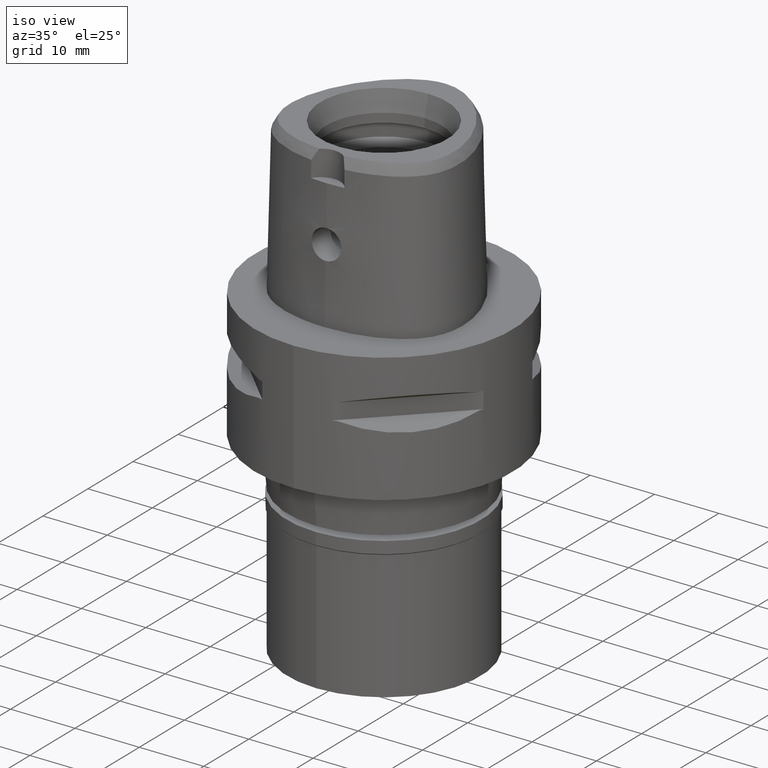
[diagram: clean part render]
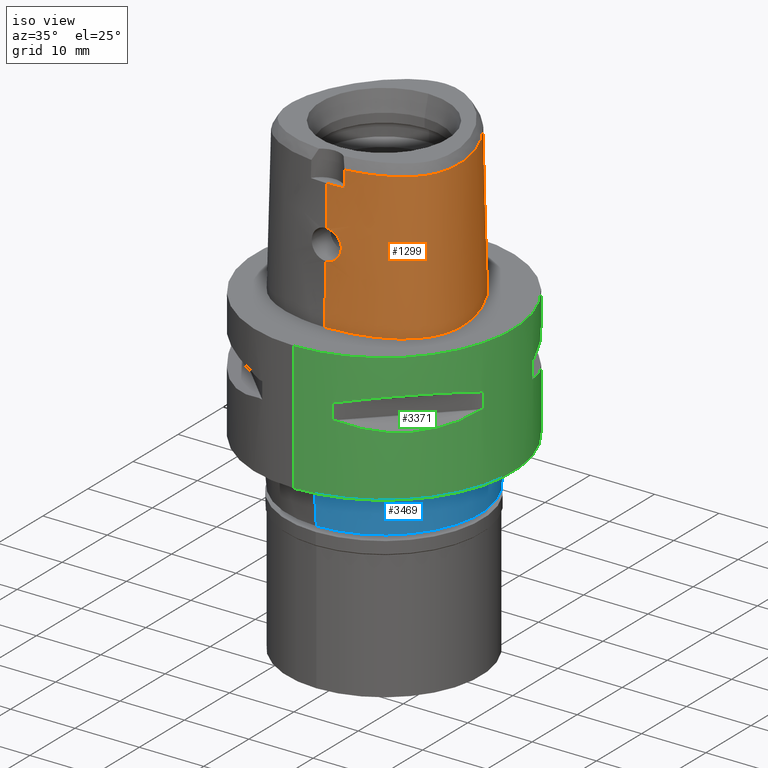
[diagram: same view with three faces highlighted in distinct colors, each labeled with its STEP entity id]
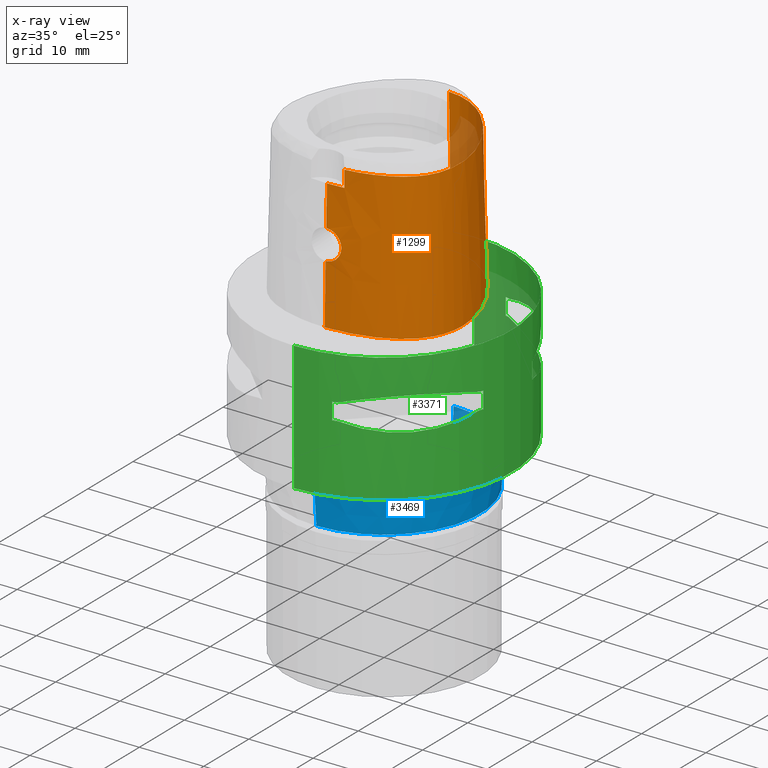
[diagram: x-ray of the same camera — body ghosted, the three highlighted faces saturated]
A machine part, iso view with three faces highlighted in distinct colors.
The next image is the same camera in x-ray (body ghosted, the three faces saturated) — at least one of them is partly hidden behind the body in this view.
Their STEP definitions:

[orange] entity #1299 — the highlighted face is a freeform B-spline surface patch.
#70 = CARTESIAN_POINT ( 'NONE',  ( 12.47264427687999877, -7.201084530003999618, 22.97118249122000222 ) ) ;
#88 = CARTESIAN_POINT ( 'NONE',  ( 9.263792099397001323, -10.80433667490000005, 7.356783935097999994 ) ) ;
#110 = CARTESIAN_POINT ( 'NONE',  ( 4.045377554437999734, -12.93507169190999839, -0.4504153429651999718 ) ) ;
#138 = CARTESIAN_POINT ( 'NONE',  ( 14.06716929220000090, -4.370330523015999447, -0.4504153429651999718 ) ) ;
#159 = CARTESIAN_POINT ( 'NONE',  ( 11.56079931822999995, -8.766973838382998707, 15.16398321315999986 ) ) ;
#216 = CARTESIAN_POINT ( 'NONE',  ( 8.879307742571000972, 9.717869209200998171, 15.16398321315999986 ) ) ;
#219 = CARTESIAN_POINT ( 'NONE',  ( 3.539803247036207967, 13.67924950644733606, 22.52071729251861143 ) ) ;
#226 = CARTESIAN_POINT ( 'NONE',  ( 2.293385494867744345, -12.76236463091154505, 11.32198205547385506 ) ) ;
#236 = CARTESIAN_POINT ( 'NONE',  ( 1.661261531538999982E-10, 14.96299999994999830, 3.899103262484000620E-13 ) ) ;
#248 = CARTESIAN_POINT ( 'NONE',  ( 1.142660624072548758, -12.79660889248676092, 13.49746603115485577 ) ) ;
#275 = CARTESIAN_POINT ( 'NONE',  ( 2.273024517919945975, -12.76906917249595885, 11.14078746314901025 ) ) ;
#304 = CARTESIAN_POINT ( 'NONE',  ( 1.951316193587584902, -12.82105448168982598, 10.28025765310058404 ) ) ;
#316 = CARTESIAN_POINT ( 'NONE',  ( 2.568703243657000090, -12.45023755174000080, 22.52071758139999957 ) ) ;
#323 = CARTESIAN_POINT ( 'NONE',  ( 2.174655026127970459, -12.75097664368962391, 12.25065586503894188 ) ) ;
#340 = CARTESIAN_POINT ( 'NONE',  ( 0.2807011223801637034, -12.81802318095999915, 13.79999999999999893 ) ) ;
#351 = EDGE_CURVE ( 'NONE', #4447, #1700, #2070, .T. ) ;
#383 = CARTESIAN_POINT ( 'NONE',  ( 4.736458210706018690, -12.13940339171434424, 22.52071729251861143 ) ) ;
#426 = CARTESIAN_POINT ( 'NONE',  ( 13.17288114413000066, -6.685476016541000099, 7.356783935097999994 ) ) ;
#452 = CARTESIAN_POINT ( 'NONE',  ( 11.41870150597999967, -8.632189043231001335, 22.97118249122000222 ) ) ;
#466 = CARTESIAN_POINT ( 'NONE',  ( -1.930288390703999815E-12, -13.16299999999999848, 3.892626961507000177E-13 ) ) ;
#469 = ORIENTED_EDGE ( 'NONE', *, *, #2871, .F. ) ;
#470 = CARTESIAN_POINT ( 'NONE',  ( -0.8491476845015000219, -12.57247808768999953, 22.97118249122000222 ) ) ;
#494 = CARTESIAN_POINT ( 'NONE',  ( 12.37623263715999933, -8.065311703606999671, 7.356783935097999994 ) ) ;
#520 = CARTESIAN_POINT ( 'NONE',  ( 13.59718074450999836, -2.623279432783999887, 22.97118249122000222 ) ) ;
#541 = CARTESIAN_POINT ( 'NONE',  ( 11.17307779205999907, 6.450792858636000382, 15.16398321315999986 ) ) ;
#563 = CARTESIAN_POINT ( 'NONE',  ( 1.634303316525999916, 14.85806844434000062, -0.4504153429651999718 ) ) ;
#575 = CARTESIAN_POINT ( 'NONE',  ( 1.542743282436311425, -12.86521460690171281, 9.794004530773854356 ) ) ;
#593 = CARTESIAN_POINT ( 'NONE',  ( 3.618945440640000122, 13.84737964006000155, 15.16398321315999986 ) ) ;
#605 = CARTESIAN_POINT ( 'NONE',  ( 1.684262171806061970, -12.77302273728515303, 13.06656659278257138 ) ) ;
#624 = CARTESIAN_POINT ( 'NONE',  ( 0.5039711947966821759, 14.40001989753188916, 22.52071729251861143 ) ) ;
#627 = B_SPLINE_CURVE_WITH_KNOTS ( 'NONE', 3,
 ( #466, #2996, #3382, #4505, #1227, #2675, #862, #3786, #1141, #4071, #1610, #798, #3065, #3696, #2246, #1303, #2702, #2343, #3862, #3090, #4523, #236 ),
 .UNSPECIFIED., .F., .F.,
 ( 4, 1, 1, 1, 1, 1, 1, 1, 1, 1, 1, 1, 1, 1, 1, 1, 1, 1, 1, 4 ),
 ( 0.0000000000000000000, 0.08333333333318000691, 0.1666666666663000063, 0.2083333333328000192, 0.2499999999994000077, 0.2916666666661000273, 0.3124999999992999489, 0.3333333333326000125, 0.3541666666659000207, 0.3749999999991999733, 0.4166666666658000451, 0.4583333333323000303, 0.4999999999988999910, 0.5833333333319999925, 0.6666666666652000250, 0.7499999999983000265, 0.8333333333314000280, 0.9166666666646000605, 0.9583333333311000457, 1.000000000000000000 ),
 .UNSPECIFIED. ) ;
#632 = CARTESIAN_POINT ( 'NONE',  ( 0.8463630567564333074, -12.91308736094397958, 9.361346884265582702 ) ) ;
#650 = CARTESIAN_POINT ( 'NONE',  ( 12.48241502960296501, -7.206725676733834796, 22.52071729251861143 ) ) ;
#656 = CARTESIAN_POINT ( 'NONE',  ( 2.300118713600481701, -12.75356737073905045, 11.64310838016456451 ) ) ;
#683 = CARTESIAN_POINT ( 'NONE',  ( 0.9870234129898286524, -12.90617499169804283, 9.419215489519121576 ) ) ;
#794 = ORIENTED_EDGE ( 'NONE', *, *, #3094, .T. ) ;
#798 = CARTESIAN_POINT ( 'NONE',  ( 14.05597389355748739, -4.368733593420984995, 9.282077474801093964E-08 ) ) ;
#802 = CARTESIAN_POINT ( 'NONE',  ( -0.5664558417530000112, -12.58333764852999792, 22.97118249122000222 ) ) ;
#828 = CARTESIAN_POINT ( 'NONE',  ( 13.62540800579000155, -0.2530731131868000361, 15.16398321315999986 ) ) ;
#846 = CARTESIAN_POINT ( 'NONE',  ( 13.35152085058000004, -6.764911736232000372, -0.4504153429651999718 ) ) ;
#862 = CARTESIAN_POINT ( 'NONE',  ( 11.83679699033385013, -9.028767381210370147, 9.282077474801093964E-08 ) ) ;
#868 = CARTESIAN_POINT ( 'NONE',  ( 12.99424143767999951, -6.606040296849999827, 15.16398321315999986 ) ) ;
#899 = CARTESIAN_POINT ( 'NONE',  ( 12.85560858368000048, 2.830737031714000373, 15.16398321315999986 ) ) ;
#921 = CARTESIAN_POINT ( 'NONE',  ( 3.786921847045999989, 14.20422968890999904, -0.4504153429651999718 ) ) ;
#944 = CARTESIAN_POINT ( 'NONE',  ( 1.594059747537999838, 14.66589040905999930, 7.356783935097999994 ) ) ;
#955 = CARTESIAN_POINT ( 'NONE',  ( 2.129813370590927679, -12.75234797374024254, 12.36828487053687731 ) ) ;
#988 = CARTESIAN_POINT ( 'NONE',  ( 1.823556130522964391, -12.83669982089731398, 10.09632717221551879 ) ) ;
#1003 = CARTESIAN_POINT ( 'NONE',  ( 13.19588016803159292, -5.576003003766894395, 22.52071729251861143 ) ) ;
#1005 = VERTEX_POINT ( 'NONE', #3464 ) ;
#1007 = ORIENTED_EDGE ( 'NONE', *, *, #351, .T. ) ;
#1009 = CARTESIAN_POINT ( 'NONE',  ( 1.107777221481558216, -12.89898952628356632, 9.478752576675015362 ) ) ;
#1031 = CARTESIAN_POINT ( 'NONE',  ( 1.362992585940625334, -12.88053689247976052, 9.645493491656431218 ) ) ;
#1060 = CARTESIAN_POINT ( 'NONE',  ( 1.493711519974081137, -12.86960986600499623, 9.750504243735710119 ) ) ;
#1082 = B_SPLINE_CURVE_WITH_KNOTS ( 'NONE', 3,
 ( #2373, #624, #2021, #219, #1676, #3182, #3131, #2397, #2821, #3870, #4642, #1003, #2453, #650, #2095, #2186, #3664, #1858, #3225, #383, #2891, #316 ),
 .UNSPECIFIED., .F., .F.,
 ( 4, 1, 1, 1, 1, 1, 1, 1, 1, 1, 1, 1, 1, 1, 1, 1, 1, 1, 1, 4 ),
 ( 0.0000000000000000000, 0.04407253041122694004, 0.08814506081991534125, 0.1762901216375037383, 0.2644351824549863728, 0.3525802432724689517, 0.4407253040900573349, 0.5288703649075399138, 0.5729428953163340221, 0.6170154257250224372, 0.6610879561338167676, 0.6831242213382138218, 0.7051604865426108759, 0.7271967517470081521, 0.7492330169512992910, 0.7933055473601992036, 0.8373780777689934229, 0.8814506081776818380, 0.9695956689951855667, 1.000000000000000000 ),
 .UNSPECIFIED. ) ;
#1141 = CARTESIAN_POINT ( 'NONE',  ( 12.97089751291263227, -7.488751170712958150, 9.282077474801093964E-08 ) ) ;
#1163 = CARTESIAN_POINT ( 'NONE',  ( 7.098705612412000043, -11.85792496016999920, 7.356783935097999994 ) ) ;
#1185 = CARTESIAN_POINT ( 'NONE',  ( 13.74837364329999900, -5.739794814221999886, -0.4504153429651999718 ) ) ;
#1205 = CARTESIAN_POINT ( 'NONE',  ( -1.260417588442999891E-08, -12.66301535847000004, 19.99999996345999875 ) ) ;
#1211 = CARTESIAN_POINT ( 'NONE',  ( 7.165542351163000312, -12.04243711977999887, -0.4504153429651999718 ) ) ;
#1227 = CARTESIAN_POINT ( 'NONE',  ( 9.354901132058586199, -10.96475156047701205, 9.282077474801093964E-08 ) ) ;
#1231 = CARTESIAN_POINT ( 'NONE',  ( -0.5813887771194999887, -13.16870179345000125, -0.4504153429651999718 ) ) ;
#1256 = CARTESIAN_POINT ( 'NONE',  ( 13.22478982947999882, 2.964135533712000115, -0.4504153429651999718 ) ) ;
#1266 = CARTESIAN_POINT ( 'NONE',  ( 0.2902039409409589710, -12.93122636338095610, 9.213445385782282671 ) ) ;
#1299 = ADVANCED_FACE ( 'NONE', ( #2140 ), #3826, .T. ) ;
#1303 = CARTESIAN_POINT ( 'NONE',  ( 11.50301489970195590, 6.641268748833571323, 9.282077474801093964E-08 ) ) ;
#1306 = CARTESIAN_POINT ( 'NONE',  ( 1.745775296001229160, -12.61172358491318235, 20.00000039696028509 ) ) ;
#1311 = CARTESIAN_POINT ( 'NONE',  ( 11.00320918113999902, 6.352726063081999719, 22.97118249122000222 ) ) ;
#1320 = CARTESIAN_POINT ( 'NONE',  ( 1.749832844621748817, -12.76985976215405572, 12.99331170241439715 ) ) ;
#1347 = CARTESIAN_POINT ( 'NONE',  ( 2.299969345384927699, -12.75813322093607027, 11.46185367828803159 ) ) ;
#1364 = CARTESIAN_POINT ( 'NONE',  ( 9.179411193043000239, 9.970937548241000314, -0.4504153429651999718 ) ) ;
#1376 = CARTESIAN_POINT ( 'NONE',  ( 2.133463040823847745, -12.75222410475732993, 12.35927822234116569 ) ) ;
#1389 = CARTESIAN_POINT ( 'NONE',  ( 3.534957237436999744, 13.66895461564000058, 22.97118249122000222 ) ) ;
#1398 = CARTESIAN_POINT ( 'NONE',  ( 1.209086969383210919, -12.79412523546007563, 13.45817784083520507 ) ) ;
#1417 = CARTESIAN_POINT ( 'NONE',  ( 1.777128131591719784, -12.76853727841389663, 12.96066480105116270 ) ) ;
#1445 = CARTESIAN_POINT ( 'NONE',  ( 0.5839158949211610272, -12.81370532052833333, 13.74793500496120302 ) ) ;
#1472 = CARTESIAN_POINT ( 'NONE',  ( -2.522154460911999787E-13, -12.93301545397000041, 9.199999999999999289 ) ) ;
#1528 = CARTESIAN_POINT ( 'NONE',  ( 11.51281501389000006, 6.646926449742999843, -0.4504153429651999718 ) ) ;
#1532 = B_SPLINE_CURVE_WITH_KNOTS ( 'NONE', 3,
 ( #3079, #4539, #1266, #2408, #2102, #3601, #4617, #4311, #632, #4264, #2771, #1681, #683, #1009, #2030, #1031, #2849, #1060, #575, #3578, #1704, #3902, #2872, #2460, #2802, #988, #4287, #304, #3923, #2506, #2438, #2080, #3500, #3159, #2128, #275, #2828, #226, #3136, #2482, #1347, #656, #4649, #3877, #1760, #3948, #323, #1778, #4592, #1376, #955, #3231, #4686, #3213, #3550, #4336, #1417, #1320, #1733, #605, #4233, #2054, #4669, #3526, #3191, #1398, #248, #2144, #4713, #3621, #2899, #3966, #4360, #1445, #340, #3257 ),
 .UNSPECIFIED., .F., .F.,
 ( 4, 2, 2, 1, 1, 1, 2, 2, 2, 2, 2, 1, 2, 2, 2, 2, 2, 2, 2, 2, 2, 2, 2, 2, 2, 1, 1, 1, 2, 2, 2, 2, 2, 1, 2, 2, 2, 2, 1, 1, 2, 2, 4 ),
 ( 0.0000000000000000000, 0.06250000000000432987, 0.09375000000000656419, 0.1093750000000075773, 0.1171875000000080491, 0.1210937500000083128, 0.1230468750000084516, 0.1250000000000085765, 0.1875000000000157652, 0.2187500000000195122, 0.2343750000000213995, 0.2421875000000222045, 0.2460937500000223710, 0.2500000000000225930, 0.2812500000000218159, 0.3125000000000210387, 0.3437500000000203171, 0.3593750000000199285, 0.3750000000000195954, 0.4375000000000193179, 0.4687500000000188183, 0.4843750000000182077, 0.5000000000000176525, 0.5625000000000129896, 0.5937500000000109912, 0.6093750000000099920, 0.6171875000000098810, 0.6210937500000095479, 0.6230468750000096589, 0.6250000000000097700, 0.6875000000000087708, 0.7187500000000082157, 0.7343750000000079936, 0.7421875000000082157, 0.7460937500000084377, 0.7500000000000085487, 0.8125000000000063283, 0.8437500000000052180, 0.8593750000000047740, 0.8671875000000045519, 0.8710937500000044409, 0.8750000000000042188, 1.000000000000000000 ),
 .UNSPECIFIED. ) ;
#1548 = CARTESIAN_POINT ( 'NONE',  ( 10.69740338561999948, -9.843145463419999075, 7.356783935097999994 ) ) ;
#1569 = CARTESIAN_POINT ( 'NONE',  ( 3.976337268537999847, -12.54865303907000040, 15.16398321315999986 ) ) ;
#1595 = CARTESIAN_POINT ( 'NONE',  ( 13.48500868276999931, -4.287290201189000172, 22.97118249122000222 ) ) ;
#1610 = CARTESIAN_POINT ( 'NONE',  ( 13.73754041215770805, -5.736583202463232389, 9.282077474801093964E-08 ) ) ;
#1614 = CARTESIAN_POINT ( 'NONE',  ( 12.21811943099000075, -7.950323039575999395, 15.16398321315999986 ) ) ;
#1639 = CARTESIAN_POINT ( 'NONE',  ( 6.258002222271001003, 12.52314191327999993, 7.356783935097999994 ) ) ;
#1647 = ORIENTED_EDGE ( 'NONE', *, *, #3608, .F. ) ;
#1649 = CARTESIAN_POINT ( 'NONE',  ( -1.930288390703999815E-12, -13.16299999999999848, 3.892626961507000177E-13 ) ) ;
#1673 = CARTESIAN_POINT ( 'NONE',  ( 9.029359467806999717, 9.844403378720999243, 7.356783935097999994 ) ) ;
#1676 = CARTESIAN_POINT ( 'NONE',  ( 6.021703607728960961, 12.22251596526603379, 22.52071729251861143 ) ) ;
#1681 = CARTESIAN_POINT ( 'NONE',  ( 0.8747345760825240291, -12.91171422237656863, 9.372829819806552720 ) ) ;
#1700 = VERTEX_POINT ( 'NONE', #3905 ) ;
#1704 = CARTESIAN_POINT ( 'NONE',  ( 1.591641127645532450, -12.86067053571080265, 9.839636682121147615 ) ) ;
#1733 = CARTESIAN_POINT ( 'NONE',  ( 1.706514786404052408, -12.77195056588757360, 13.04216762706118793 ) ) ;
#1750 = CARTESIAN_POINT ( 'NONE',  ( 8.729256017336000539, 9.591335039680000563, 22.97118249122000222 ) ) ;
#1760 = CARTESIAN_POINT ( 'NONE',  ( 2.225429295877805469, -12.75012210877848062, 12.08593180704468928 ) ) ;
#1778 = CARTESIAN_POINT ( 'NONE',  ( 2.151238930190031873, -12.75164808129624561, 12.31414270909390574 ) ) ;
#1782 = VERTEX_POINT ( 'NONE', #2901 ) ;
#1858 = CARTESIAN_POINT ( 'NONE',  ( 9.075996545096090884, -10.47368666716481123, 22.52071729251861143 ) ) ;
#1882 = CARTESIAN_POINT ( 'NONE',  ( 9.070417823553999170, -10.46386426041000028, 22.97118249122000222 ) ) ;
#1904 = CARTESIAN_POINT ( 'NONE',  ( 12.53434584332000057, -8.180300367637000747, -0.4504153429651999718 ) ) ;
#1923 = CARTESIAN_POINT ( 'NONE',  ( 12.06000622482999951, -7.835334375546000096, 22.97118249122000222 ) ) ;
#1925 = CARTESIAN_POINT ( 'NONE',  ( 2.580559080356283008, -12.46988838676011468, 21.68047841357000038 ) ) ;
#1946 = CARTESIAN_POINT ( 'NONE',  ( 10.81840190636999921, -9.997360705044998852, -0.4504153429651999718 ) ) ;
#1971 = CARTESIAN_POINT ( 'NONE',  ( 6.965032134911000483, -11.48890064096000074, 22.97118249122000222 ) ) ;
#1992 = CARTESIAN_POINT ( 'NONE',  ( 6.136343129648000883, 12.36836368859999880, 15.16398321315999986 ) ) ;
#2018 = CARTESIAN_POINT ( 'NONE',  ( 0.3611446949459999889, 14.40383093538000026, 22.97118249122000222 ) ) ;
#2021 = CARTESIAN_POINT ( 'NONE',  ( 1.515894610913128826, 14.29262276005753485, 22.52071729251861143 ) ) ;
#2030 = CARTESIAN_POINT ( 'NONE',  ( 1.298081316895645099, -12.88549019284528541, 9.599832172041297795 ) ) ;
#2054 = CARTESIAN_POINT ( 'NONE',  ( 1.645449367504334903, -12.77488553661844151, 13.10705414946518488 ) ) ;
#2070 = B_SPLINE_CURVE_WITH_KNOTS ( 'NONE', 3,
 ( #3590, #1306, #4551, #4195 ),
 .UNSPECIFIED., .F., .F.,
 ( 4, 4 ),
 ( 0.0000000000000000000, 1.000000000000000000 ),
 .UNSPECIFIED. ) ;
#2080 = CARTESIAN_POINT ( 'NONE',  ( 2.093435941504518727, -12.80154818977981357, 10.54659307499018972 ) ) ;
#2092 = CARTESIAN_POINT ( 'NONE',  ( -0.4356961645870999766, 14.57076311456999917, 15.16398321315999986 ) ) ;
#2095 = CARTESIAN_POINT ( 'NONE',  ( 12.06912915025992206, -7.841969071234663247, 22.52071729251861143 ) ) ;
#2102 = CARTESIAN_POINT ( 'NONE',  ( 0.5851900645696469505, -12.92362272837751114, 9.274365687045227347 ) ) ;
#2128 = CARTESIAN_POINT ( 'NONE',  ( 2.230462555877943842, -12.77898657628069756, 10.91885181785458059 ) ) ;
#2140 = FACE_OUTER_BOUND ( 'NONE', #2535, .T. ) ;
#2144 = CARTESIAN_POINT ( 'NONE',  ( 1.043973006521108138, -12.80001853782782462, 13.54975762555262087 ) ) ;
#2156 = EDGE_CURVE ( 'NONE', #4181, #3497, #4310, .T. ) ;
#2186 = CARTESIAN_POINT ( 'NONE',  ( 11.42690036410446197, -8.639965949822933311, 22.52071729251861143 ) ) ;
#2240 = CARTESIAN_POINT ( 'NONE',  ( 2.603594716343999860, -12.50959097760000027, 20.00000007790999845 ) ) ;
#2246 = CARTESIAN_POINT ( 'NONE',  ( 13.21414036827191474, 2.960287499207522988, 9.282077474801093964E-08 ) ) ;
#2251 = CARTESIAN_POINT ( 'NONE',  ( 1.057767382078000029, -13.20004108082999927, -0.4504153429651999718 ) ) ;
#2273 = CARTESIAN_POINT ( 'NONE',  ( 13.18504574001000051, -5.572791037182000196, 22.97118249122000222 ) ) ;
#2293 = CARTESIAN_POINT ( 'NONE',  ( 13.56059767553000128, -5.684126888541999989, 7.356783935097999994 ) ) ;
#2310 = CARTESIAN_POINT ( 'NONE',  ( -4.211779061779190698E-09, -12.71469678372942980, 17.93333361273020543 ) ) ;
#2317 = CARTESIAN_POINT ( 'NONE',  ( 12.81560173122000101, -6.526604577159000442, 22.97118249122000222 ) ) ;
#2319 = ORIENTED_EDGE ( 'NONE', *, *, #3269, .T. ) ;
#2343 = CARTESIAN_POINT ( 'NONE',  ( 6.372642519642405468, 12.66899062315751401, 9.282077474801093964E-08 ) ) ;
#2370 = CARTESIAN_POINT ( 'NONE',  ( -0.4238406400436000032, 14.37596217944000010, 22.97118249122000222 ) ) ;
#2373 = CARTESIAN_POINT ( 'NONE',  ( -6.273120490105999997E-11, 14.40001989798000182, 22.52071729252999788 ) ) ;
#2397 = CARTESIAN_POINT ( 'NONE',  ( 12.68166859856463091, 2.767886240359027639, 22.52071729251861143 ) ) ;
#2408 = CARTESIAN_POINT ( 'NONE',  ( 0.5113403790312807118, -12.92585909161381608, 9.256304699929900792 ) ) ;
#2427 = CARTESIAN_POINT ( 'NONE',  ( -0.2906054647037999428, 14.57957065327999935, 15.16398321315999986 ) ) ;
#2438 = CARTESIAN_POINT ( 'NONE',  ( 2.060625410429665294, -12.80630362429435998, 10.47760979869173958 ) ) ;
#2450 = CARTESIAN_POINT ( 'NONE',  ( 0.3713127192391000309, 14.59941792462999999, 15.16398321315999986 ) ) ;
#2453 = CARTESIAN_POINT ( 'NONE',  ( 12.82590900890055430, -6.531187914407115436, 22.52071729251861143 ) ) ;
#2460 = CARTESIAN_POINT ( 'NONE',  ( 1.677338744211443800, -12.85235830105390242, 9.924503536723278785 ) ) ;
#2482 = CARTESIAN_POINT ( 'NONE',  ( 2.299158587325218939, -12.75906338818680652, 11.42842241198873054 ) ) ;
#2506 = CARTESIAN_POINT ( 'NONE',  ( 2.043463385705227342, -12.80871364514175603, 10.44374245704669946 ) ) ;
#2535 = EDGE_LOOP ( 'NONE', ( #4015, #794, #469, #1007, #3304, #1647, #4563, #2319 ) ) ;
#2610 = CARTESIAN_POINT ( 'NONE',  ( 11.70289713048000024, -8.901758633534999632, 7.356783935097999994 ) ) ;
#2633 = CARTESIAN_POINT ( 'NONE',  ( 13.87311575572000066, -4.342650415739999659, 7.356783935097999994 ) ) ;
#2655 = CARTESIAN_POINT ( 'NONE',  ( 3.941817125587999460, -12.35544371266000141, 22.97118249122000222 ) ) ;
#2675 = CARTESIAN_POINT ( 'NONE',  ( 10.81142122104199643, -9.988463670040838238, 9.282077474801093964E-08 ) ) ;
#2679 = CARTESIAN_POINT ( 'NONE',  ( 1.039641956624000052, -12.80928534899000049, 15.16398321315999986 ) ) ;
#2702 = CARTESIAN_POINT ( 'NONE',  ( 9.170754360956941298, 9.963637498495081957, 9.282077474801093964E-08 ) ) ;
#2708 = CARTESIAN_POINT ( 'NONE',  ( 11.84499494273000053, -9.036543428687000556, -0.4504153429651999718 ) ) ;
#2736 = CARTESIAN_POINT ( 'NONE',  ( 6.014684037025000762, 12.21358546391000210, 22.97118249122000222 ) ) ;
#2771 = CARTESIAN_POINT ( 'NONE',  ( 0.8690674297353273570, -12.91199189238994371, 9.370505741518016407 ) ) ;
#2789 = CARTESIAN_POINT ( 'NONE',  ( 0.3814807435322000173, 14.79500491388999883, 7.356783935097999994 ) ) ;
#2801 = CARTESIAN_POINT ( 'NONE',  ( -2.522154460911999787E-13, -12.93301545397000041, 9.199999999999999289 ) ) ;
#2802 = CARTESIAN_POINT ( 'NONE',  ( 1.727977423403443735, -12.84715031218481052, 9.980214359576860872 ) ) ;
#2821 = CARTESIAN_POINT ( 'NONE',  ( 13.44334616193302878, -0.2854647381888404944, 22.52071729251861143 ) ) ;
#2828 = CARTESIAN_POINT ( 'NONE',  ( 2.283291726770521723, -12.76615336162676684, 11.21397804798649744 ) ) ;
#2831 = VERTEX_POINT ( 'NONE', #3728 ) ;
#2842 = CARTESIAN_POINT ( 'NONE',  ( -0.3063166190720000293, 14.96966817281000139, -0.4504153429651999718 ) ) ;
#2849 = CARTESIAN_POINT ( 'NONE',  ( 1.460959802937699559, -12.87242665810233078, 9.723111638592708772 ) ) ;
#2871 = EDGE_CURVE ( 'NONE', #4447, #1782, #3421, .T. ) ;
#2872 = CARTESIAN_POINT ( 'NONE',  ( 1.617438359909708190, -12.85819787466013864, 9.864768670370319015 ) ) ;
#2891 = CARTESIAN_POINT ( 'NONE',  ( 3.014424016408930651, -12.39773933397921368, 22.52071729251860788 ) ) ;
#2899 = CARTESIAN_POINT ( 'NONE',  ( 0.9140504597120603369, -12.80412716134025963, 13.61058950016344760 ) ) ;
#2901 = CARTESIAN_POINT ( 'NONE',  ( 2.568703243657000090, -12.45023755174000080, 22.52071758139999957 ) ) ;
#2914 = EDGE_CURVE ( 'NONE', #2831, #3162, #4587, .T. ) ;
#2982 = CARTESIAN_POINT ( 'NONE',  ( 11.34294640296999823, 6.548859654188999180, 7.356783935097999994 ) ) ;
#2996 = CARTESIAN_POINT ( 'NONE',  ( 1.347795335771875269, -13.16299999767950979, 9.282077474801093964E-08 ) ) ;
#2999 = CARTESIAN_POINT ( 'NONE',  ( 9.167104961475999403, -10.63410046765999972, 15.16398321315999986 ) ) ;
#3025 = CARTESIAN_POINT ( 'NONE',  ( 13.04019920658000053, 2.897436282713000022, 7.356783935097999994 ) ) ;
#3049 = CARTESIAN_POINT ( 'NONE',  ( 14.18449853887999978, -2.619126383671000369, -0.4504153429651999718 ) ) ;
#3065 = CARTESIAN_POINT ( 'NONE',  ( 14.17320396358396017, -2.619206250016536508, 9.282077474801093964E-08 ) ) ;
#3069 = CARTESIAN_POINT ( 'NONE',  ( 12.81132621647000036, -7.396622639511000408, 7.356783935097999994 ) ) ;
#3079 = CARTESIAN_POINT ( 'NONE',  ( -2.522154460911999787E-13, -12.93301545397000041, 9.199999999999999289 ) ) ;
#3090 = CARTESIAN_POINT ( 'NONE',  ( 1.631981571677635134, 14.84698124771367489, 9.282077474801093964E-08 ) ) ;
#3094 = EDGE_CURVE ( 'NONE', #2831, #1782, #1082, .T. ) ;
#3131 = CARTESIAN_POINT ( 'NONE',  ( 11.01301037806680760, 6.358384389067014197, 22.52071729251861143 ) ) ;
#3136 = CARTESIAN_POINT ( 'NONE',  ( 2.295866016301515877, -12.76119921827122994, 11.35768768159920050 ) ) ;
#3150 = CARTESIAN_POINT ( 'NONE',  ( 3.702933643843000056, 14.02580466448999985, 7.356783935097999994 ) ) ;
#3159 = CARTESIAN_POINT ( 'NONE',  ( 2.186354490230978165, -12.78715814037339271, 10.76765892241432532 ) ) ;
#3162 = VERTEX_POINT ( 'NONE', #3404 ) ;
#3182 = CARTESIAN_POINT ( 'NONE',  ( 8.737913805848384285, 9.598635895951975527, 22.52071729251861143 ) ) ;
#3191 = CARTESIAN_POINT ( 'NONE',  ( 1.408052784000374924, -12.78604258398210014, 13.32559425419505139 ) ) ;
#3206 = CARTESIAN_POINT ( 'NONE',  ( 0.3916487678254000349, 14.99059190314999768, -0.4504153429651999718 ) ) ;
#3213 = CARTESIAN_POINT ( 'NONE',  ( 2.021153119201026804, -12.75677398847740918, 12.60794142556711428 ) ) ;
#3225 = CARTESIAN_POINT ( 'NONE',  ( 6.968888527418697798, -11.49954675151529493, 22.52071729251861143 ) ) ;
#3231 = CARTESIAN_POINT ( 'NONE',  ( 2.127531297605237626, -12.75242672595457627, 12.37385599951361037 ) ) ;
#3252 = CARTESIAN_POINT ( 'NONE',  ( -0.8715805127841999012, -13.15757747019999968, -0.4504153429651999718 ) ) ;
#3257 = CARTESIAN_POINT ( 'NONE',  ( 0.0000000000000000000, -12.81802318095999915, 13.79999999999999893 ) ) ;
#3269 = EDGE_CURVE ( 'NONE', #3497, #3162, #627, .T. ) ;
#3304 = ORIENTED_EDGE ( 'NONE', *, *, #3885, .T. ) ;
#3345 = CARTESIAN_POINT ( 'NONE',  ( 12.67101796077999865, 2.764037780714999837, 22.97118249122000222 ) ) ;
#3366 = CARTESIAN_POINT ( 'NONE',  ( 12.98066718625999982, -7.494391694265000403, -0.4504153429651999718 ) ) ;
#3382 = CARTESIAN_POINT ( 'NONE',  ( 4.043386007318931163, -12.92392499770406111, 9.282077474801093964E-08 ) ) ;
#3386 = CARTESIAN_POINT ( 'NONE',  ( 1.048704669351000041, -13.00466321490999988, 7.356783935097999994 ) ) ;
#3404 = CARTESIAN_POINT ( 'NONE',  ( 1.661261531538999982E-10, 14.96299999994999830, 3.899103262484000620E-13 ) ) ;
#3411 = CARTESIAN_POINT ( 'NONE',  ( 13.37282170777000090, -5.628458962861999204, 15.16398321315999986 ) ) ;
#3421 = B_SPLINE_CURVE_WITH_KNOTS ( 'NONE', 3,
 ( #3748, #3795, #1925, #4490 ),
 .UNSPECIFIED., .F., .F.,
 ( 4, 4 ),
 ( 0.0000000000000000000, 1.000000000000000000 ),
 .UNSPECIFIED. ) ;
#3436 = CARTESIAN_POINT ( 'NONE',  ( -0.5714334868752000141, -12.77845903016999962, 15.16398321315999986 ) ) ;
#3440 = B_SPLINE_CURVE_WITH_KNOTS ( 'NONE', 3,
 ( #1205, #2310, #4481, #3759 ),
 .UNSPECIFIED., .F., .F.,
 ( 4, 4 ),
 ( 0.0000000000000000000, 1.000000000000000000 ),
 .UNSPECIFIED. ) ;
#3462 = DIRECTION ( 'NONE',  ( 1.015890747470026227E-11, 0.02499051293165070395, -0.9996876883624270516 ) ) ;
#3464 = CARTESIAN_POINT ( 'NONE',  ( 0.0000000000000000000, -12.81802318095999915, 13.79999999999999893 ) ) ;
#3497 = VERTEX_POINT ( 'NONE', #1649 ) ;
#3498 = DIRECTION ( 'NONE',  ( -1.823422677067930275E-13, -0.02499051295424905769, -0.9996876883618621701 ) ) ;
#3500 = CARTESIAN_POINT ( 'NONE',  ( 2.108316059763357231, -12.79932254745118314, 10.57985993983337281 ) ) ;
#3526 = CARTESIAN_POINT ( 'NONE',  ( 1.523028941585233165, -12.78074262657525395, 13.23006938842576652 ) ) ;
#3550 = CARTESIAN_POINT ( 'NONE',  ( 1.900109215926363726, -12.76256732845277497, 12.79816543667886464 ) ) ;
#3572 = CARTESIAN_POINT ( 'NONE',  ( -6.273120490105999997E-11, 14.40001989798000182, 22.52071729252999788 ) ) ;
#3578 = CARTESIAN_POINT ( 'NONE',  ( 1.567234804671698400, -12.86297445961074715, 9.816357320232395267 ) ) ;
#3590 = CARTESIAN_POINT ( 'NONE',  ( 2.603594716343999860, -12.50959097760000027, 20.00000007790999845 ) ) ;
#3601 = CARTESIAN_POINT ( 'NONE',  ( 0.6955382435542523112, -12.91959727455216367, 9.307353099922005768 ) ) ;
#3608 = EDGE_CURVE ( 'NONE', #4181, #1005, #1532, .T. ) ;
#3621 = CARTESIAN_POINT ( 'NONE',  ( 0.9381876973383265206, -12.80340306008582374, 13.60008248094647243 ) ) ;
#3664 = CARTESIAN_POINT ( 'NONE',  ( 10.46238780067046470, -9.543612998138696568, 22.52071729251861143 ) ) ;
#3696 = CARTESIAN_POINT ( 'NONE',  ( 14.00068087787193960, -0.1863062504087505122, 9.282077474801093964E-08 ) ) ;
#3701 = CARTESIAN_POINT ( 'NONE',  ( 10.57640486485999887, -9.688930221794999298, 15.16398321315999986 ) ) ;
#3726 = CARTESIAN_POINT ( 'NONE',  ( 9.360479237318999779, -10.97457288215000126, -0.4504153429651999718 ) ) ;
#3728 = CARTESIAN_POINT ( 'NONE',  ( -6.273120490105999997E-11, 14.40001989798000182, 22.52071729252999788 ) ) ;
#3746 = CARTESIAN_POINT ( 'NONE',  ( 13.43219820908000095, -0.2874481318572000288, 22.97118249122000222 ) ) ;
#3748 = CARTESIAN_POINT ( 'NONE',  ( 2.603594716343999860, -12.50959097760000027, 20.00000007790999845 ) ) ;
#3759 = CARTESIAN_POINT ( 'NONE',  ( 0.0000000000000000000, -12.81802318095999915, 13.79999999999999893 ) ) ;
#3764 = CARTESIAN_POINT ( 'NONE',  ( -0.8566252939291000290, -12.76751121518999987, 15.16398321315999986 ) ) ;
#3786 = CARTESIAN_POINT ( 'NONE',  ( 12.52522392570015874, -8.173666404883539016, 9.282077474801093964E-08 ) ) ;
#3791 = CARTESIAN_POINT ( 'NONE',  ( 13.79295334263000150, -2.621895083080000077, 15.16398321315999986 ) ) ;
#3795 = CARTESIAN_POINT ( 'NONE',  ( 2.592189410844740749, -12.48967527515265097, 20.84023924574000119 ) ) ;
#3817 = CARTESIAN_POINT ( 'NONE',  ( 1.513572609559999949, 14.28153433848999931, 22.97118249122000222 ) ) ;
#3826 = B_SPLINE_SURFACE_WITH_KNOTS ( 'NONE', 3, 3, ( 
 ( #3252, #4708, #3764, #470 ),
 ( #1231, #4488, #3436, #802 ),
 ( #2251, #3386, #2679, #4120 ),
 ( #110, #4142, #1569, #2655 ),
 ( #1211, #1163, #4441, #1971 ),
 ( #3726, #88, #2999, #1882 ),
 ( #1946, #1548, #3701, #4077 ),
 ( #2708, #2610, #159, #452 ),
 ( #1904, #494, #1614, #1923 ),
 ( #3366, #3069, #4463, #70 ),
 ( #846, #426, #868, #2317 ),
 ( #1185, #2293, #3411, #2273 ),
 ( #138, #2633, #4101, #1595 ),
 ( #3049, #4509, #3791, #520 ),
 ( #4173, #4527, #828, #3746 ),
 ( #1256, #3025, #899, #3345 ),
 ( #1528, #2982, #541, #1311 ),
 ( #1364, #1673, #216, #1750 ),
 ( #4199, #1639, #1992, #2736 ),
 ( #921, #3150, #593, #1389 ),
 ( #563, #944, #3916, #3817 ),
 ( #3206, #2789, #2450, #2018 ),
 ( #2842, #4252, #2427, #3867 ),
 ( #4637, #4606, #2092, #2370 ) ),
 .UNSPECIFIED., .F., .F., .F.,
 ( 4, 1, 1, 1, 1, 1, 1, 1, 1, 1, 1, 1, 1, 1, 1, 1, 1, 1, 1, 1, 1, 4 ),
 ( 4, 4 ),
 ( -0.01796457239588999943, 0.0000000000000000000, 0.08333333333318000691, 0.1666666666663000063, 0.2083333333328000192, 0.2499999999994000077, 0.2916666666661000273, 0.3124999999992999489, 0.3333333333326000125, 0.3541666666659000207, 0.3749999999991999733, 0.4166666666658000451, 0.4583333333323000303, 0.4999999999988999910, 0.5833333333319999925, 0.6666666666652000250, 0.7499999999983000265, 0.8333333333314000280, 0.9166666666646000605, 0.9583333333311000457, 1.000000000000000000, 1.011713651438000072 ),
 ( -3.824610783285000410E-08, 1.000001950551999919 ),
 .UNSPECIFIED. ) ;
#3862 = CARTESIAN_POINT ( 'NONE',  ( 3.782076372785741825, 14.19393593537981779, 9.282077474801093964E-08 ) ) ;
#3867 = CARTESIAN_POINT ( 'NONE',  ( -0.2827498875198000139, 14.38452189350999966, 22.97118249122000222 ) ) ;
#3870 = CARTESIAN_POINT ( 'NONE',  ( 13.60847656765625047, -2.623199557614649180, 22.52071729251861143 ) ) ;
#3877 = CARTESIAN_POINT ( 'NONE',  ( 2.243503838786558457, -12.75015969206865130, 12.01219160939755604 ) ) ;
#3885 = EDGE_CURVE ( 'NONE', #1700, #1005, #3440, .T. ) ;
#3902 = CARTESIAN_POINT ( 'NONE',  ( 1.607887411604790318, -12.85912041386440308, 9.855364509025401176 ) ) ;
#3905 = CARTESIAN_POINT ( 'NONE',  ( -1.260417588442999891E-08, -12.66301535847000004, 19.99999996345999875 ) ) ;
#3916 = CARTESIAN_POINT ( 'NONE',  ( 1.553816178548999893, 14.47371237378000153, 15.16398321315999986 ) ) ;
#3923 = CARTESIAN_POINT ( 'NONE',  ( 1.989864840159478510, -12.81604061845430920, 10.34408982141709643 ) ) ;
#3948 = CARTESIAN_POINT ( 'NONE',  ( 2.192541761835641534, -12.75060236087980670, 12.19586171828253107 ) ) ;
#3949 = VECTOR ( 'NONE', #3498, 1000.000000000000000 ) ;
#3966 = CARTESIAN_POINT ( 'NONE',  ( 0.8979950358144440647, -12.80460331550574082, 13.61747047128233667 ) ) ;
#4015 = ORIENTED_EDGE ( 'NONE', *, *, #2914, .F. ) ;
#4071 = CARTESIAN_POINT ( 'NONE',  ( 13.34121471154555039, -6.760328905305406089, 9.282077474801093964E-08 ) ) ;
#4077 = CARTESIAN_POINT ( 'NONE',  ( 10.45540634410000003, -9.534714980169999521, 22.97118249122000222 ) ) ;
#4101 = CARTESIAN_POINT ( 'NONE',  ( 13.67906221924000043, -4.314970308465000848, 15.16398321315999986 ) ) ;
#4120 = CARTESIAN_POINT ( 'NONE',  ( 1.030579243896999841, -12.61390748308000020, 22.97118249122000222 ) ) ;
#4142 = CARTESIAN_POINT ( 'NONE',  ( 4.010857411487999791, -12.74186236549000029, 7.356783935097999994 ) ) ;
#4173 = CARTESIAN_POINT ( 'NONE',  ( 14.01182759921000098, -0.1843230758459999952, -0.4504153429651999718 ) ) ;
#4181 = VERTEX_POINT ( 'NONE', #1472 ) ;
#4195 = CARTESIAN_POINT ( 'NONE',  ( -1.260417588442999891E-08, -12.66301535847000004, 19.99999996345999875 ) ) ;
#4199 = CARTESIAN_POINT ( 'NONE',  ( 6.379661314893999347, 12.67792013796000106, -0.4504153429651999718 ) ) ;
#4233 = CARTESIAN_POINT ( 'NONE',  ( 1.661097454703123866, -12.77413506297896362, 13.09087457277828115 ) ) ;
#4252 = CARTESIAN_POINT ( 'NONE',  ( -0.2984610418879000138, 14.77461941303999993, 7.356783935097999994 ) ) ;
#4264 = CARTESIAN_POINT ( 'NONE',  ( 0.8599890503359784999, -12.91243217640209018, 9.366823301356228981 ) ) ;
#4287 = CARTESIAN_POINT ( 'NONE',  ( 1.869424949172659556, -12.83134063688183879, 10.15811452068828480 ) ) ;
#4310 = LINE ( 'NONE', #2801, #3949 ) ;
#4311 = CARTESIAN_POINT ( 'NONE',  ( 0.8145125421449768144, -12.91457943454069657, 9.348898823461954777 ) ) ;
#4336 = CARTESIAN_POINT ( 'NONE',  ( 1.854517083051412385, -12.76478398343997256, 12.86296390897502384 ) ) ;
#4360 = CARTESIAN_POINT ( 'NONE',  ( 0.8913097515742636201, -12.80479973338802324, 13.62029918993369115 ) ) ;
#4441 = CARTESIAN_POINT ( 'NONE',  ( 7.031868873662000752, -11.67341280057000041, 15.16398321315999986 ) ) ;
#4447 = VERTEX_POINT ( 'NONE', #2240 ) ;
#4463 = CARTESIAN_POINT ( 'NONE',  ( 12.64198524667000001, -7.298853584758000501, 15.16398321315999986 ) ) ;
#4481 = CARTESIAN_POINT ( 'NONE',  ( -4.221509543106365796E-09, -12.76635998234397107, 15.86666680636505333 ) ) ;
#4488 = CARTESIAN_POINT ( 'NONE',  ( -0.5764111319974000169, -12.97358041180999955, 7.356783935097999994 ) ) ;
#4490 = CARTESIAN_POINT ( 'NONE',  ( 2.568703243657000090, -12.45023755174000080, 22.52071758139999957 ) ) ;
#4505 = CARTESIAN_POINT ( 'NONE',  ( 7.161686384671195782, -12.03179218530112671, 9.282077474801093964E-08 ) ) ;
#4509 = CARTESIAN_POINT ( 'NONE',  ( 13.98872594076000020, -2.620510733375000179, 7.356783935097999994 ) ) ;
#4523 = CARTESIAN_POINT ( 'NONE',  ( 0.5439938571806097745, 14.96299999769101596, 9.282077474801093964E-08 ) ) ;
#4527 = CARTESIAN_POINT ( 'NONE',  ( 13.81861780250000038, -0.2186980945163999879, 7.356783935097999994 ) ) ;
#4539 = CARTESIAN_POINT ( 'NONE',  ( 0.1433742188724675404, -12.93301545397000218, 9.199999999999999289 ) ) ;
#4551 = CARTESIAN_POINT ( 'NONE',  ( 0.8728598500686174377, -12.66303358566756820, 20.00000039696028509 ) ) ;
#4563 = ORIENTED_EDGE ( 'NONE', *, *, #2156, .T. ) ;
#4587 = LINE ( 'NONE', #3572, #4644 ) ;
#4592 = CARTESIAN_POINT ( 'NONE',  ( 2.138891804679722952, -12.75204249368168163, 12.34575813156915913 ) ) ;
#4606 = CARTESIAN_POINT ( 'NONE',  ( -0.4475516891306000056, 14.76556404969000091, 7.356783935097999994 ) ) ;
#4617 = CARTESIAN_POINT ( 'NONE',  ( 0.7506047745461432719, -12.91741682039676142, 9.325319817459771343 ) ) ;
#4637 = CARTESIAN_POINT ( 'NONE',  ( -0.4594072136741000345, 14.96036498481999999, -0.4504153429651999718 ) ) ;
#4642 = CARTESIAN_POINT ( 'NONE',  ( 13.49620531830489867, -4.288887307216406874, 22.52071729251861143 ) ) ;
#4644 = VECTOR ( 'NONE', #3462, 1000.000000000000114 ) ;
#4649 = CARTESIAN_POINT ( 'NONE',  ( 2.286485425363378177, -12.75134569601234702, 11.79083204285286612 ) ) ;
#4669 = CARTESIAN_POINT ( 'NONE',  ( 1.636146738088311237, -12.77533106805133656, 13.11651252606773710 ) ) ;
#4686 = CARTESIAN_POINT ( 'NONE',  ( 2.080890816681221001, -12.75405392847548569, 12.48689062667896188 ) ) ;
#4708 = CARTESIAN_POINT ( 'NONE',  ( -0.8641029033566000050, -12.96254434269999933, 7.356783935097999994 ) ) ;
#4713 = CARTESIAN_POINT ( 'NONE',  ( 0.9948637765814553058, -12.80164440044861074, 13.57424493532782606 ) ) ;

[blue] entity #3469 — the highlighted conical surface has half-angle 5 deg.
#158 = VERTEX_POINT ( 'NONE', #3527 ) ;
#244 = ORIENTED_EDGE ( 'NONE', *, *, #3811, .T. ) ;
#254 = LINE ( 'NONE', #1763, #1651 ) ;
#297 = CIRCLE ( 'NONE', #3654, 15.00000000000000000 ) ;
#566 = DIRECTION ( 'NONE',  ( 0.0000000000000000000, -1.000000000000000000, 0.0000000000000000000 ) ) ;
#621 = CARTESIAN_POINT ( 'NONE',  ( 0.0000000000000000000, 15.00000000000000000, -27.19999999999999929 ) ) ;
#748 = CONICAL_SURFACE ( 'NONE', #2889, 15.22747052517000022, 0.08726646259969973729 ) ;
#818 = EDGE_CURVE ( 'NONE', #1533, #3157, #3400, .T. ) ;
#880 = DIRECTION ( 'NONE',  ( 0.0000000000000000000, 0.0000000000000000000, 1.000000000000000000 ) ) ;
#904 = ORIENTED_EDGE ( 'NONE', *, *, #1618, .F. ) ;
#924 = DIRECTION ( 'NONE',  ( 0.0000000000000000000, 0.0000000000000000000, 1.000000000000000000 ) ) ;
#981 = CARTESIAN_POINT ( 'NONE',  ( 0.0000000000000000000, 0.0000000000000000000, -27.19999999999999929 ) ) ;
#1084 = CARTESIAN_POINT ( 'NONE',  ( 0.0000000000000000000, 0.0000000000000000000, -22.00000000000000000 ) ) ;
#1126 = EDGE_LOOP ( 'NONE', ( #1309, #244, #2976, #904 ) ) ;
#1140 = LINE ( 'NONE', #2909, #1444 ) ;
#1309 = ORIENTED_EDGE ( 'NONE', *, *, #818, .F. ) ;
#1337 = VERTEX_POINT ( 'NONE', #621 ) ;
#1404 = DIRECTION ( 'NONE',  ( 0.0000000000000000000, -0.08715574274711937464, -0.9961946980917927297 ) ) ;
#1444 = VECTOR ( 'NONE', #3314, 999.9999999999998863 ) ;
#1525 = CARTESIAN_POINT ( 'NONE',  ( 0.0000000000000000000, 15.45494105032999954, -22.00000000000000000 ) ) ;
#1533 = VERTEX_POINT ( 'NONE', #3883 ) ;
#1618 = EDGE_CURVE ( 'NONE', #3157, #1337, #254, .T. ) ;
#1651 = VECTOR ( 'NONE', #1404, 999.9999999999998863 ) ;
#1763 = CARTESIAN_POINT ( 'NONE',  ( 0.0000000000000000000, 15.45494105032999954, -22.00000000000000000 ) ) ;
#1887 = DIRECTION ( 'NONE',  ( 0.0000000000000000000, -1.000000000000000000, 0.0000000000000000000 ) ) ;
#1930 = DIRECTION ( 'NONE',  ( 0.0000000000000000000, 1.000000000000000000, 0.0000000000000000000 ) ) ;
#2527 = DIRECTION ( 'NONE',  ( 0.0000000000000000000, 0.0000000000000000000, 1.000000000000000000 ) ) ;
#2704 = AXIS2_PLACEMENT_3D ( 'NONE', #1084, #2527, #1887 ) ;
#2721 = CARTESIAN_POINT ( 'NONE',  ( 0.0000000000000000000, 0.0000000000000000000, -24.60000000000000142 ) ) ;
#2889 = AXIS2_PLACEMENT_3D ( 'NONE', #2721, #880, #1930 ) ;
#2909 = CARTESIAN_POINT ( 'NONE',  ( 0.0000000000000000000, -15.45494105032999954, -22.00000000000000000 ) ) ;
#2976 = ORIENTED_EDGE ( 'NONE', *, *, #3052, .T. ) ;
#3052 = EDGE_CURVE ( 'NONE', #158, #1337, #297, .T. ) ;
#3157 = VERTEX_POINT ( 'NONE', #1525 ) ;
#3314 = DIRECTION ( 'NONE',  ( 0.0000000000000000000, 0.08715574274711937464, -0.9961946980917927297 ) ) ;
#3400 = CIRCLE ( 'NONE', #2704, 15.45494105034000043 ) ;
#3469 = ADVANCED_FACE ( 'NONE', ( #3804 ), #748, .T. ) ;
#3527 = CARTESIAN_POINT ( 'NONE',  ( 0.0000000000000000000, -15.00000000000000000, -27.19999999999999929 ) ) ;
#3654 = AXIS2_PLACEMENT_3D ( 'NONE', #981, #924, #566 ) ;
#3804 = FACE_OUTER_BOUND ( 'NONE', #1126, .T. ) ;
#3811 = EDGE_CURVE ( 'NONE', #1533, #158, #1140, .T. ) ;
#3883 = CARTESIAN_POINT ( 'NONE',  ( 0.0000000000000000000, -15.45494105032999954, -22.00000000000000000 ) ) ;

[green] entity #3371 — the highlighted cylindrical surface (partial cylindrical patch) has radius 20 mm, axis along (0, 0, -1).
#14 = CARTESIAN_POINT ( 'NONE',  ( 19.06685920573999837, -6.037787676659999825, -9.300000000000999023 ) ) ;
#15 = CARTESIAN_POINT ( 'NONE',  ( 5.428966298580000682, 19.24906036483000094, -9.299999999999998934 ) ) ;
#32 = CARTESIAN_POINT ( 'NONE',  ( 10.19668967436019713, -17.20615142661327468, -10.23823386088708176 ) ) ;
#42 = CARTESIAN_POINT ( 'NONE',  ( 0.0000000000000000000, 20.00000000000000000, 0.0000000000000000000 ) ) ;
#55 = CARTESIAN_POINT ( 'NONE',  ( 19.06685920573999837, 6.037787676659999825, -6.699999999999000089 ) ) ;
#78 = B_SPLINE_CURVE_WITH_KNOTS ( 'NONE', 3,
 ( #249, #2031, #227, #3501, #1705, #3448, #1980, #4265, #2332, #2722, #4619, #1348, #169, #2803, #2439, #633, #1241, #1624, #3551, #277, #1734, #3192, #2690, #3081 ),
 .UNSPECIFIED., .F., .F.,
 ( 4, 1, 1, 1, 1, 1, 2, 2, 2, 1, 1, 1, 1, 1, 2, 2, 4 ),
 ( 0.0000000000000000000, 0.1249999999999927558, 0.1874999999999891753, 0.2187499999999873990, 0.2343749999999866218, 0.2421874999999862332, 0.2460937499999860667, 0.2499999999999859002, 0.4999999999999836797, 0.6249999999999823475, 0.6874999999999817923, 0.7187499999999815703, 0.7343749999999815703, 0.7421874999999816813, 0.7460937499999817923, 0.7499999999999817923, 1.000000000000000000 ),
 .UNSPECIFIED. ) ;
#95 = CARTESIAN_POINT ( 'NONE',  ( 0.0000000000000000000, 1.251160402349000119E-14, -9.299999999999998934 ) ) ;
#132 = AXIS2_PLACEMENT_3D ( 'NONE', #2746, #3057, #504 ) ;
#153 = LINE ( 'NONE', #4070, #3419 ) ;
#154 = CARTESIAN_POINT ( 'NONE',  ( 18.57569612330057041, -7.588842109422133220, -6.267301168153333712 ) ) ;
#162 = CARTESIAN_POINT ( 'NONE',  ( 0.0000000000000000000, 1.251160402349000119E-14, -6.700000000000000178 ) ) ;
#163 = EDGE_CURVE ( 'NONE', #3564, #4658, #78, .T. ) ;
#169 = CARTESIAN_POINT ( 'NONE',  ( 13.59286613329412319, 14.69143800710783587, -10.59808963984088059 ) ) ;
#225 = DIRECTION ( 'NONE',  ( 0.0000000000000000000, 0.0000000000000000000, -1.000000000000000000 ) ) ;
#227 = CARTESIAN_POINT ( 'NONE',  ( 18.37435100509595998, 7.974729623729687411, -9.808037949574286429 ) ) ;
#241 = CARTESIAN_POINT ( 'NONE',  ( 15.24842641772788809, 13.03584482973402636, -5.401930550040227708 ) ) ;
#247 = CARTESIAN_POINT ( 'NONE',  ( 19.06685920573999837, -6.037787676659999825, -9.300000000000999023 ) ) ;
#249 = CARTESIAN_POINT ( 'NONE',  ( 19.06685920573999837, 6.037787676656000357, -9.299999999999998934 ) ) ;
#272 = DIRECTION ( 'NONE',  ( 0.0000000000000000000, 0.0000000000000000000, -1.000000000000000000 ) ) ;
#277 = CARTESIAN_POINT ( 'NONE',  ( 10.54606745822896663, 16.99353821201703596, -10.29406776248861988 ) ) ;
#278 = EDGE_CURVE ( 'NONE', #3641, #1415, #3646, .T. ) ;
#339 = CARTESIAN_POINT ( 'NONE',  ( 19.24906036483000094, -5.428966298580000682, -9.299999999999998934 ) ) ;
#353 = DIRECTION ( 'NONE',  ( 0.0000000000000000000, 0.0000000000000000000, -1.000000000000000000 ) ) ;
#375 = CIRCLE ( 'NONE', #3273, 20.00000000000000000 ) ;
#504 = DIRECTION ( 'NONE',  ( 0.0000000000000000000, -1.000000000000000000, 0.0000000000000000000 ) ) ;
#569 = ORIENTED_EDGE ( 'NONE', *, *, #278, .T. ) ;
#581 = CARTESIAN_POINT ( 'NONE',  ( 0.0000000000000000000, 20.00000000000000000, 0.0000000000000000000 ) ) ;
#631 = LINE ( 'NONE', #4616, #2635 ) ;
#633 = CARTESIAN_POINT ( 'NONE',  ( 11.07873582667563639, 16.65304730898736452, -10.37252388421079807 ) ) ;
#682 = CIRCLE ( 'NONE', #2188, 20.00000000000000711 ) ;
#707 = CARTESIAN_POINT ( 'NONE',  ( 14.69143800710143033, -13.59286613330021964, -10.59808963984076158 ) ) ;
#746 = CARTESIAN_POINT ( 'NONE',  ( 19.24906036483000094, 5.428966298580000682, -6.700000000000000178 ) ) ;
#757 = VERTEX_POINT ( 'NONE', #746 ) ;
#781 = VERTEX_POINT ( 'NONE', #2967 ) ;
#805 = AXIS2_PLACEMENT_3D ( 'NONE', #1373, #272, #3598 ) ;
#819 = AXIS2_PLACEMENT_3D ( 'NONE', #922, #3868, #2843 ) ;
#885 = AXIS2_PLACEMENT_3D ( 'NONE', #3302, #2898, #2505 ) ;
#893 = CIRCLE ( 'NONE', #4485, 20.00000000000000000 ) ;
#907 = DIRECTION ( 'NONE',  ( 0.3018893838328123858, -0.9533429602871387187, 0.0000000000000000000 ) ) ;
#922 = CARTESIAN_POINT ( 'NONE',  ( 0.0000000000000000000, 1.251160402349000119E-14, -6.700000000000000178 ) ) ;
#947 = CARTESIAN_POINT ( 'NONE',  ( 5.428966298580000682, 19.24906036483000094, -6.700000000000000178 ) ) ;
#967 = CIRCLE ( 'NONE', #885, 20.00000000000000000 ) ;
#973 = DIRECTION ( 'NONE',  ( 0.0000000000000000000, 0.0000000000000000000, 1.000000000000000000 ) ) ;
#1001 = CARTESIAN_POINT ( 'NONE',  ( 9.064296220468573750, 17.89930010961132467, -5.942778734617723657 ) ) ;
#1014 = CARTESIAN_POINT ( 'NONE',  ( 10.48392761238885562, -17.03197491928964169, -10.28439099668980816 ) ) ;
#1037 = DIRECTION ( 'NONE',  ( 0.0000000000000000000, 0.0000000000000000000, -1.000000000000000000 ) ) ;
#1059 = CIRCLE ( 'NONE', #1889, 20.00000000000000711 ) ;
#1069 = CARTESIAN_POINT ( 'NONE',  ( 0.0000000000000000000, -20.00000000000000000, 0.0000000000000000000 ) ) ;
#1077 = CARTESIAN_POINT ( 'NONE',  ( 5.428966298580000682, -19.24906036483000094, -9.299999999999998934 ) ) ;
#1087 = CARTESIAN_POINT ( 'NONE',  ( 15.46304525449938971, -12.72622750477986031, -10.55929324095711053 ) ) ;
#1135 = EDGE_CURVE ( 'NONE', #3564, #4145, #1263, .T. ) ;
#1230 = VERTEX_POINT ( 'NONE', #1077 ) ;
#1241 = CARTESIAN_POINT ( 'NONE',  ( 10.79324770714546666, 16.83802176569365372, -10.33148935319468009 ) ) ;
#1263 = CIRCLE ( 'NONE', #805, 20.00000000000000711 ) ;
#1277 = CIRCLE ( 'NONE', #819, 20.00000000000000711 ) ;
#1305 = VERTEX_POINT ( 'NONE', #2762 ) ;
#1312 = CARTESIAN_POINT ( 'NONE',  ( 11.78782756884713301, 16.23556379044043041, -5.510086664166614412 ) ) ;
#1341 = VERTEX_POINT ( 'NONE', #2394 ) ;
#1348 = CARTESIAN_POINT ( 'NONE',  ( 15.24067460459711043, 13.04353085696967973, -10.59804935437511553 ) ) ;
#1373 = CARTESIAN_POINT ( 'NONE',  ( 0.0000000000000000000, 1.251160402349000119E-14, -9.299999999999998934 ) ) ;
#1390 = CARTESIAN_POINT ( 'NONE',  ( 0.0000000000000000000, -20.00000000000000000, -20.00000000000000000 ) ) ;
#1392 = EDGE_LOOP ( 'NONE', ( #2016, #2894, #569, #4047 ) ) ;
#1405 = CARTESIAN_POINT ( 'NONE',  ( 6.037787676659999825, 19.06685920573999837, -9.300000000000999023 ) ) ;
#1415 = VERTEX_POINT ( 'NONE', #3556 ) ;
#1486 = DIRECTION ( 'NONE',  ( 0.0000000000000000000, 0.0000000000000000000, 1.000000000000000000 ) ) ;
#1488 = EDGE_CURVE ( 'NONE', #3127, #1415, #3217, .T. ) ;
#1501 = CARTESIAN_POINT ( 'NONE',  ( 5.428966298580000682, -19.24906036483000094, -6.700000000000000178 ) ) ;
#1524 = DIRECTION ( 'NONE',  ( 0.0000000000000000000, 0.0000000000000000000, -1.000000000000000000 ) ) ;
#1535 = DIRECTION ( 'NONE',  ( 0.2714483149290045083, -0.9624530182415160784, 0.0000000000000000000 ) ) ;
#1544 = CARTESIAN_POINT ( 'NONE',  ( 6.037787676659999825, -19.06685920573999837, -6.699999999999000089 ) ) ;
#1568 = ORIENTED_EDGE ( 'NONE', *, *, #4066, .F. ) ;
#1580 = DIRECTION ( 'NONE',  ( 0.9533429602871387187, -0.3018893838328123858, 0.0000000000000000000 ) ) ;
#1591 = CARTESIAN_POINT ( 'NONE',  ( 11.78776565401151188, -16.23560874351307248, -5.510106948679895034 ) ) ;
#1624 = CARTESIAN_POINT ( 'NONE',  ( 10.64933512882524802, 16.92907764914966151, -10.30991069787679670 ) ) ;
#1672 = ORIENTED_EDGE ( 'NONE', *, *, #2908, .T. ) ;
#1705 = CARTESIAN_POINT ( 'NONE',  ( 17.38810193308593099, 9.886368560431439079, -10.18582677984731433 ) ) ;
#1734 = CARTESIAN_POINT ( 'NONE',  ( 10.52654956716440360, 17.00564674891153416, -10.29104290631524776 ) ) ;
#1749 = VERTEX_POINT ( 'NONE', #3328 ) ;
#1757 = VERTEX_POINT ( 'NONE', #55 ) ;
#1764 = CARTESIAN_POINT ( 'NONE',  ( 10.46079808215863238, -17.04620345718587515, -10.28075718178602571 ) ) ;
#1769 = B_SPLINE_CURVE_WITH_KNOTS ( 'NONE', 3,
 ( #1544, #4097, #2604, #1591, #1900, #3020, #3044, #2269, #154, #4483 ),
 .UNSPECIFIED., .F., .F.,
 ( 4, 2, 2, 2, 4 ),
 ( 0.0000000000000000000, 0.2500000000000000000, 0.5000000000000000000, 0.7500000000000000000, 1.000000000000000000 ),
 .UNSPECIFIED. ) ;
#1829 = CARTESIAN_POINT ( 'NONE',  ( 6.037787676656000357, -19.06685920573999837, -9.299999999999998934 ) ) ;
#1847 = CARTESIAN_POINT ( 'NONE',  ( 19.24906036483000094, -5.428966298580000682, -6.700000000000000178 ) ) ;
#1863 = LINE ( 'NONE', #339, #2324 ) ;
#1888 = VERTEX_POINT ( 'NONE', #1928 ) ;
#1889 = AXIS2_PLACEMENT_3D ( 'NONE', #95, #3825, #907 ) ;
#1891 = CARTESIAN_POINT ( 'NONE',  ( 0.0000000000000000000, 1.251160402349000119E-14, -6.700000000000000178 ) ) ;
#1900 = CARTESIAN_POINT ( 'NONE',  ( 13.03584482973396952, -15.24842641772791652, -5.401930550040227708 ) ) ;
#1910 = DIRECTION ( 'NONE',  ( 0.0000000000000000000, 0.0000000000000000000, 1.000000000000000000 ) ) ;
#1928 = CARTESIAN_POINT ( 'NONE',  ( 6.037787676659999825, -19.06685920573999837, -6.699999999999000089 ) ) ;
#1931 = AXIS2_PLACEMENT_3D ( 'NONE', #4385, #1037, #2550 ) ;
#1956 = FACE_OUTER_BOUND ( 'NONE', #1392, .T. ) ;
#1979 = CARTESIAN_POINT ( 'NONE',  ( 19.06685920573999837, 6.037787676656000357, -9.299999999999998934 ) ) ;
#1980 = CARTESIAN_POINT ( 'NONE',  ( 17.11329306682758755, 10.35096251251517607, -10.26330621669107934 ) ) ;
#2006 = B_SPLINE_CURVE_WITH_KNOTS ( 'NONE', 3,
 ( #3593, #2819, #3490, #4253, #241, #4638, #1312, #1001, #3151, #4304 ),
 .UNSPECIFIED., .F., .F.,
 ( 4, 2, 2, 2, 4 ),
 ( 0.0000000000000000000, 0.2499999999999998890, 0.4999999999999997780, 0.7499999999999998890, 1.000000000000000000 ),
 .UNSPECIFIED. ) ;
#2016 = ORIENTED_EDGE ( 'NONE', *, *, #4712, .T. ) ;
#2031 = CARTESIAN_POINT ( 'NONE',  ( 18.81740308416247842, 6.825550513451698720, -9.519762796231850288 ) ) ;
#2042 = CARTESIAN_POINT ( 'NONE',  ( 0.0000000000000000000, 1.251160402349000119E-14, -20.00000000000000000 ) ) ;
#2118 = ORIENTED_EDGE ( 'NONE', *, *, #3625, .T. ) ;
#2131 = CARTESIAN_POINT ( 'NONE',  ( 10.35096251251630228, -17.11329306682722873, -10.26330621669139553 ) ) ;
#2176 = DIRECTION ( 'NONE',  ( 0.0000000000000000000, 0.0000000000000000000, 1.000000000000000000 ) ) ;
#2178 = VECTOR ( 'NONE', #3531, 1000.000000000000000 ) ;
#2188 = AXIS2_PLACEMENT_3D ( 'NONE', #2689, #1910, #1580 ) ;
#2199 = CARTESIAN_POINT ( 'NONE',  ( 6.037787676659999825, 19.06685920573999837, -6.699999999999000089 ) ) ;
#2217 = EDGE_CURVE ( 'NONE', #757, #4145, #631, .T. ) ;
#2255 = CIRCLE ( 'NONE', #4412, 20.00000000000000000 ) ;
#2269 = CARTESIAN_POINT ( 'NONE',  ( 17.89930010961129625, -9.064296220468600396, -5.942778734617723657 ) ) ;
#2324 = VECTOR ( 'NONE', #1486, 1000.000000000000000 ) ;
#2332 = CARTESIAN_POINT ( 'NONE',  ( 17.04620345718597818, 10.46079808215829843, -10.28075718178593334 ) ) ;
#2346 = VERTEX_POINT ( 'NONE', #247 ) ;
#2394 = CARTESIAN_POINT ( 'NONE',  ( 0.0000000000000000000, -20.00000000000000000, 0.0000000000000000000 ) ) ;
#2409 = EDGE_CURVE ( 'NONE', #781, #2640, #1863, .T. ) ;
#2439 = CARTESIAN_POINT ( 'NONE',  ( 11.64036391729490383, 16.27164763639778400, -10.44610182776443530 ) ) ;
#2465 = CARTESIAN_POINT ( 'NONE',  ( 17.88526274348389222, -9.102657680267864038, -10.06884320373317898 ) ) ;
#2470 = EDGE_CURVE ( 'NONE', #3567, #4658, #967, .T. ) ;
#2505 = DIRECTION ( 'NONE',  ( 0.2714483149290045083, 0.9624530182415160784, 0.0000000000000000000 ) ) ;
#2530 = CARTESIAN_POINT ( 'NONE',  ( 16.83802176569102116, -10.79324770714796955, -10.33148935319462680 ) ) ;
#2550 = DIRECTION ( 'NONE',  ( 0.0000000000000000000, 1.000000000000000000, 0.0000000000000000000 ) ) ;
#2604 = CARTESIAN_POINT ( 'NONE',  ( 9.064227960950468344, -17.89933467641341380, -5.942799019131007832 ) ) ;
#2616 = VECTOR ( 'NONE', #353, 1000.000000000000000 ) ;
#2625 = AXIS2_PLACEMENT_3D ( 'NONE', #2042, #973, #3148 ) ;
#2635 = VECTOR ( 'NONE', #225, 1000.000000000000000 ) ;
#2640 = VERTEX_POINT ( 'NONE', #1847 ) ;
#2644 = CARTESIAN_POINT ( 'NONE',  ( 5.428966298579000593, 19.24906036483000094, -9.299999999999998934 ) ) ;
#2689 = CARTESIAN_POINT ( 'NONE',  ( 0.0000000000000000000, 1.251160402349000119E-14, -6.700000000000000178 ) ) ;
#2690 = CARTESIAN_POINT ( 'NONE',  ( 7.613705726424430331, 18.56782271117838334, -9.739635053944077470 ) ) ;
#2711 = DIRECTION ( 'NONE',  ( 0.0000000000000000000, 0.0000000000000000000, 1.000000000000000000 ) ) ;
#2722 = CARTESIAN_POINT ( 'NONE',  ( 17.03197491928949958, 10.48392761238900306, -10.28439099668981171 ) ) ;
#2724 = EDGE_LOOP ( 'NONE', ( #2118, #2744, #4229, #4292, #3024, #4083, #1672, #3053 ) ) ;
#2744 = ORIENTED_EDGE ( 'NONE', *, *, #3349, .F. ) ;
#2746 = CARTESIAN_POINT ( 'NONE',  ( 0.0000000000000000000, 1.251160402349000119E-14, 2.165000000000000036 ) ) ;
#2762 = CARTESIAN_POINT ( 'NONE',  ( 19.06685920573999837, -6.037787676659999825, -6.699999999999000089 ) ) ;
#2763 = DIRECTION ( 'NONE',  ( 0.9624530182415160784, -0.2714483149290045083, 0.0000000000000000000 ) ) ;
#2803 = CARTESIAN_POINT ( 'NONE',  ( 12.72622750476918974, 15.46304525451060563, -10.55929324095732902 ) ) ;
#2819 = CARTESIAN_POINT ( 'NONE',  ( 18.57571147347540830, 7.588793634775804264, -6.267314691162188645 ) ) ;
#2834 = CARTESIAN_POINT ( 'NONE',  ( 7.974729623739006179, -18.37435100509301122, -9.808037949576888792 ) ) ;
#2843 = DIRECTION ( 'NONE',  ( 0.3018893838328123858, 0.9533429602871387187, 0.0000000000000000000 ) ) ;
#2854 = CARTESIAN_POINT ( 'NONE',  ( 17.00564674891161943, -10.52654956716411760, -10.29104290631516250 ) ) ;
#2879 = CARTESIAN_POINT ( 'NONE',  ( 10.41688921769616627, -17.07309310408671266, -10.27380911531145813 ) ) ;
#2894 = ORIENTED_EDGE ( 'NONE', *, *, #4190, .T. ) ;
#2898 = DIRECTION ( 'NONE',  ( 0.0000000000000000000, 0.0000000000000000000, -1.000000000000000000 ) ) ;
#2908 = EDGE_CURVE ( 'NONE', #757, #1757, #2255, .T. ) ;
#2925 = DIRECTION ( 'NONE',  ( 0.0000000000000000000, 0.0000000000000000000, 1.000000000000000000 ) ) ;
#2967 = CARTESIAN_POINT ( 'NONE',  ( 19.24906036483000094, -5.428966298580000682, -9.299999999999998934 ) ) ;
#3020 = CARTESIAN_POINT ( 'NONE',  ( 15.24842641772788987, -13.03584482973400327, -5.401917027251112557 ) ) ;
#3024 = ORIENTED_EDGE ( 'NONE', *, *, #1135, .T. ) ;
#3044 = CARTESIAN_POINT ( 'NONE',  ( 16.23556379044037357, -11.78782756884717209, -5.510086664166614412 ) ) ;
#3053 = ORIENTED_EDGE ( 'NONE', *, *, #3669, .T. ) ;
#3055 = VERTEX_POINT ( 'NONE', #947 ) ;
#3057 = DIRECTION ( 'NONE',  ( 0.0000000000000000000, 0.0000000000000000000, -1.000000000000000000 ) ) ;
#3081 = CARTESIAN_POINT ( 'NONE',  ( 6.037787676659999825, 19.06685920573999837, -9.300000000000999023 ) ) ;
#3095 = B_SPLINE_CURVE_WITH_KNOTS ( 'NONE', 3,
 ( #1829, #3306, #2834, #4364, #3953, #32, #2131, #2879, #1764, #1014, #4315, #3286, #707, #1087, #3650, #3262, #2530, #3584, #4295, #4017, #2854, #2465, #3927, #14 ),
 .UNSPECIFIED., .F., .F.,
 ( 4, 1, 1, 1, 1, 1, 2, 2, 2, 1, 1, 1, 1, 1, 2, 2, 4 ),
 ( 0.0000000000000000000, 0.1249999999999943934, 0.1874999999999916456, 0.2187499999999901745, 0.2343749999999894251, 0.2421874999999891476, 0.2460937499999891198, 0.2499999999999891198, 0.4999999999999975575, 0.6250000000000016653, 0.6875000000000036637, 0.7187500000000048850, 0.7343750000000052180, 0.7421875000000052180, 0.7460937500000052180, 0.7500000000000051070, 1.000000000000000000 ),
 .UNSPECIFIED. ) ;
#3127 = VERTEX_POINT ( 'NONE', #42 ) ;
#3148 = DIRECTION ( 'NONE',  ( 0.0000000000000000000, -1.000000000000000000, 0.0000000000000000000 ) ) ;
#3151 = CARTESIAN_POINT ( 'NONE',  ( 7.588842109422141213, 18.57569612330058462, -6.267301168153333712 ) ) ;
#3192 = CARTESIAN_POINT ( 'NONE',  ( 9.102657680249352623, 17.88526274348975065, -10.06884320372801334 ) ) ;
#3217 = LINE ( 'NONE', #581, #2178 ) ;
#3234 = ORIENTED_EDGE ( 'NONE', *, *, #3732, .T. ) ;
#3249 = EDGE_CURVE ( 'NONE', #1888, #1305, #1769, .T. ) ;
#3262 = CARTESIAN_POINT ( 'NONE',  ( 16.65304730898246532, -11.07873582668030998, -10.37252388421070570 ) ) ;
#3273 = AXIS2_PLACEMENT_3D ( 'NONE', #4585, #4663, #2763 ) ;
#3286 = CARTESIAN_POINT ( 'NONE',  ( 13.04353085698249082, -15.24067460458490508, -10.59804935437536422 ) ) ;
#3302 = CARTESIAN_POINT ( 'NONE',  ( 0.0000000000000000000, 1.251160402349000119E-14, -9.299999999999998934 ) ) ;
#3306 = CARTESIAN_POINT ( 'NONE',  ( 6.825550513457027790, -18.81740308416080154, -9.519762796233337099 ) ) ;
#3310 = CARTESIAN_POINT ( 'NONE',  ( 19.24906036483000094, 5.428966298580000682, -9.299999999999998934 ) ) ;
#3324 = EDGE_CURVE ( 'NONE', #3853, #1888, #893, .T. ) ;
#3328 = CARTESIAN_POINT ( 'NONE',  ( 6.037787676656000357, -19.06685920573999837, -9.299999999999998934 ) ) ;
#3349 = EDGE_CURVE ( 'NONE', #3567, #3055, #4019, .T. ) ;
#3371 = ADVANCED_FACE ( 'NONE', ( #1956, #4129, #3395 ), #4110, .T. ) ;
#3395 = FACE_BOUND ( 'NONE', #2724, .T. ) ;
#3419 = VECTOR ( 'NONE', #1524, 1000.000000000000000 ) ;
#3448 = CARTESIAN_POINT ( 'NONE',  ( 17.20615142661397101, 10.19668967435800511, -10.23823386088646892 ) ) ;
#3490 = CARTESIAN_POINT ( 'NONE',  ( 17.89933467641340314, 9.064227960950521634, -5.942799019131007832 ) ) ;
#3501 = CARTESIAN_POINT ( 'NONE',  ( 17.73693809362675466, 9.258624582129396430, -10.07196314004927551 ) ) ;
#3504 = EDGE_CURVE ( 'NONE', #1305, #2640, #682, .T. ) ;
#3521 = EDGE_CURVE ( 'NONE', #1749, #1230, #1059, .T. ) ;
#3531 = DIRECTION ( 'NONE',  ( 0.0000000000000000000, 0.0000000000000000000, -1.000000000000000000 ) ) ;
#3551 = CARTESIAN_POINT ( 'NONE',  ( 10.58740791271191739, 16.96779488243858580, -10.30043526206702964 ) ) ;
#3556 = CARTESIAN_POINT ( 'NONE',  ( 0.0000000000000000000, 20.00000000000000000, -20.00000000000000000 ) ) ;
#3564 = VERTEX_POINT ( 'NONE', #1979 ) ;
#3567 = VERTEX_POINT ( 'NONE', #2644 ) ;
#3584 = CARTESIAN_POINT ( 'NONE',  ( 16.92907764914831859, -10.64933512882654654, -10.30991069787677183 ) ) ;
#3593 = CARTESIAN_POINT ( 'NONE',  ( 19.06685920573999837, 6.037787676659999825, -6.699999999999000089 ) ) ;
#3598 = DIRECTION ( 'NONE',  ( 0.9533429602871387187, 0.3018893838328123858, 0.0000000000000000000 ) ) ;
#3625 = EDGE_CURVE ( 'NONE', #4148, #3055, #1277, .T. ) ;
#3641 = VERTEX_POINT ( 'NONE', #1390 ) ;
#3646 = CIRCLE ( 'NONE', #2625, 20.00000000000000000 ) ;
#3650 = CARTESIAN_POINT ( 'NONE',  ( 16.27164763638938183, -11.64036391730291342, -10.44610182776427365 ) ) ;
#3662 = VECTOR ( 'NONE', #2925, 1000.000000000000000 ) ;
#3669 = EDGE_CURVE ( 'NONE', #1757, #4148, #2006, .T. ) ;
#3732 = EDGE_CURVE ( 'NONE', #781, #2346, #375, .T. ) ;
#3769 = ORIENTED_EDGE ( 'NONE', *, *, #3324, .T. ) ;
#3825 = DIRECTION ( 'NONE',  ( 0.0000000000000000000, 0.0000000000000000000, -1.000000000000000000 ) ) ;
#3849 = CIRCLE ( 'NONE', #1931, 20.00000000000000000 ) ;
#3853 = VERTEX_POINT ( 'NONE', #1501 ) ;
#3868 = DIRECTION ( 'NONE',  ( 0.0000000000000000000, 0.0000000000000000000, 1.000000000000000000 ) ) ;
#3927 = CARTESIAN_POINT ( 'NONE',  ( 18.56782271117252137, -7.613705726442946187, -9.739635053949244892 ) ) ;
#3953 = CARTESIAN_POINT ( 'NONE',  ( 9.886368560435517594, -17.38810193308465557, -10.18582677984844942 ) ) ;
#3993 = LINE ( 'NONE', #1069, #2616 ) ;
#3996 = ORIENTED_EDGE ( 'NONE', *, *, #3504, .T. ) ;
#4017 = CARTESIAN_POINT ( 'NONE',  ( 16.99353821201663450, -10.54606745822935032, -10.29406776248860922 ) ) ;
#4019 = LINE ( 'NONE', #15, #3662 ) ;
#4047 = ORIENTED_EDGE ( 'NONE', *, *, #1488, .F. ) ;
#4054 = ORIENTED_EDGE ( 'NONE', *, *, #2409, .F. ) ;
#4066 = EDGE_CURVE ( 'NONE', #3853, #1230, #153, .T. ) ;
#4070 = CARTESIAN_POINT ( 'NONE',  ( 5.428966298580000682, -19.24906036483000094, -6.700000000000000178 ) ) ;
#4083 = ORIENTED_EDGE ( 'NONE', *, *, #2217, .F. ) ;
#4097 = CARTESIAN_POINT ( 'NONE',  ( 7.588793634775730546, -18.57571147347541185, -6.267314691162188645 ) ) ;
#4110 = CYLINDRICAL_SURFACE ( 'NONE', #132, 20.00000000000000000 ) ;
#4129 = FACE_BOUND ( 'NONE', #4299, .T. ) ;
#4145 = VERTEX_POINT ( 'NONE', #3310 ) ;
#4148 = VERTEX_POINT ( 'NONE', #2199 ) ;
#4177 = DIRECTION ( 'NONE',  ( 0.9624530182415160784, 0.2714483149290045083, 0.0000000000000000000 ) ) ;
#4190 = EDGE_CURVE ( 'NONE', #1341, #3641, #3993, .T. ) ;
#4229 = ORIENTED_EDGE ( 'NONE', *, *, #2470, .T. ) ;
#4253 = CARTESIAN_POINT ( 'NONE',  ( 16.23560874351307248, 11.78776565401153853, -5.510106948679895922 ) ) ;
#4265 = CARTESIAN_POINT ( 'NONE',  ( 17.07309310408692582, 10.41688921769551079, -10.27380911531127872 ) ) ;
#4292 = ORIENTED_EDGE ( 'NONE', *, *, #163, .F. ) ;
#4295 = CARTESIAN_POINT ( 'NONE',  ( 16.96779488243778999, -10.58740791271266346, -10.30043526206701721 ) ) ;
#4299 = EDGE_LOOP ( 'NONE', ( #3996, #4054, #3234, #4377, #4710, #1568, #3769, #4469 ) ) ;
#4304 = CARTESIAN_POINT ( 'NONE',  ( 6.037787676659999825, 19.06685920573999837, -6.699999999999000089 ) ) ;
#4315 = CARTESIAN_POINT ( 'NONE',  ( 11.83046278588452438, -16.20025983929216196, -10.49456541975691337 ) ) ;
#4364 = CARTESIAN_POINT ( 'NONE',  ( 9.258624582136393499, -17.73693809362455198, -10.07196314005123838 ) ) ;
#4377 = ORIENTED_EDGE ( 'NONE', *, *, #4643, .F. ) ;
#4385 = CARTESIAN_POINT ( 'NONE',  ( 0.0000000000000000000, 1.251160402349000119E-14, 0.0000000000000000000 ) ) ;
#4412 = AXIS2_PLACEMENT_3D ( 'NONE', #162, #2711, #4177 ) ;
#4469 = ORIENTED_EDGE ( 'NONE', *, *, #3249, .T. ) ;
#4483 = CARTESIAN_POINT ( 'NONE',  ( 19.06685920573999837, -6.037787676659999825, -6.699999999999000089 ) ) ;
#4485 = AXIS2_PLACEMENT_3D ( 'NONE', #1891, #2176, #1535 ) ;
#4585 = CARTESIAN_POINT ( 'NONE',  ( 0.0000000000000000000, 1.251160402349000119E-14, -9.299999999999998934 ) ) ;
#4616 = CARTESIAN_POINT ( 'NONE',  ( 19.24906036483000094, 5.428966298580000682, -6.700000000000000178 ) ) ;
#4619 = CARTESIAN_POINT ( 'NONE',  ( 16.20025983930107927, 11.83046278587500488, -10.49456541975667179 ) ) ;
#4638 = CARTESIAN_POINT ( 'NONE',  ( 13.03584482973396774, 15.24842641772794494, -5.401917027251113446 ) ) ;
#4643 = EDGE_CURVE ( 'NONE', #1749, #2346, #3095, .T. ) ;
#4658 = VERTEX_POINT ( 'NONE', #1405 ) ;
#4663 = DIRECTION ( 'NONE',  ( 0.0000000000000000000, 0.0000000000000000000, -1.000000000000000000 ) ) ;
#4710 = ORIENTED_EDGE ( 'NONE', *, *, #3521, .T. ) ;
#4712 = EDGE_CURVE ( 'NONE', #3127, #1341, #3849, .T. ) ;